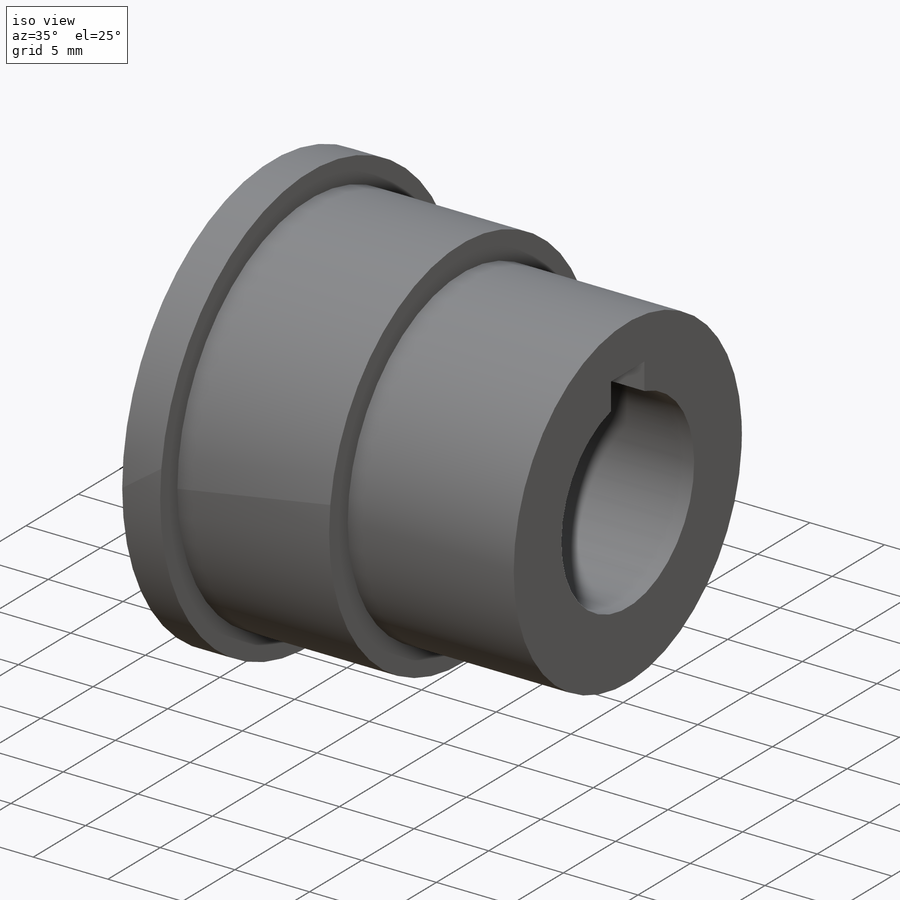
[diagram: iso view]
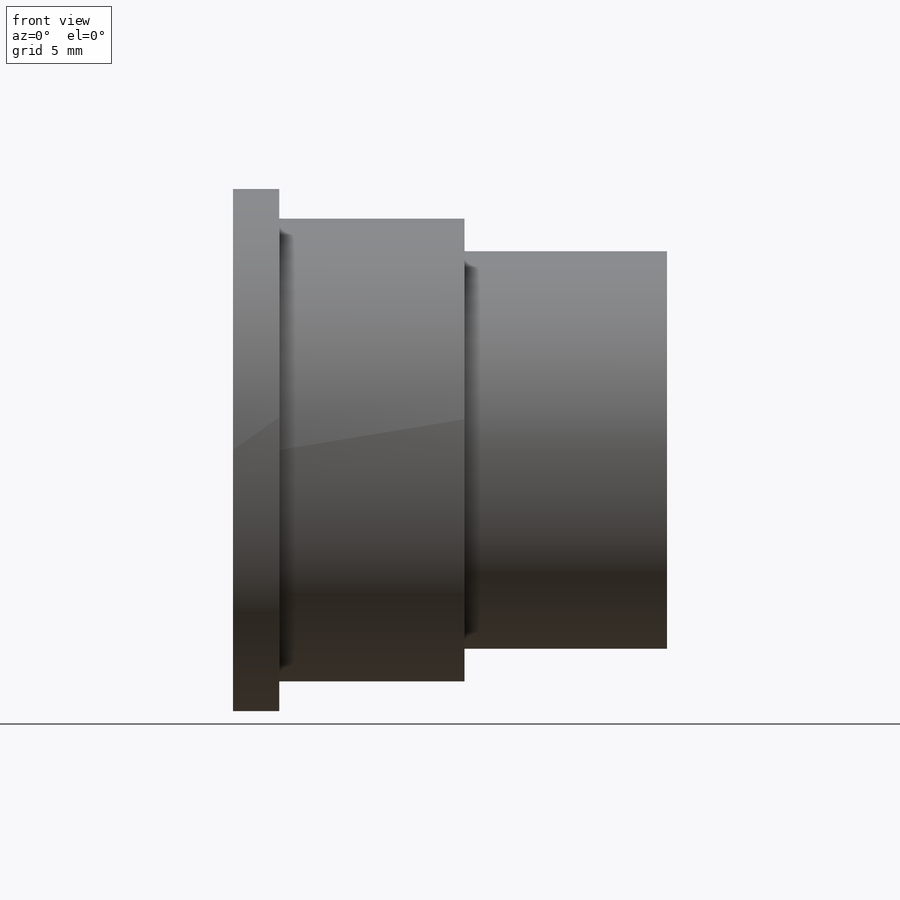
[diagram: front view]
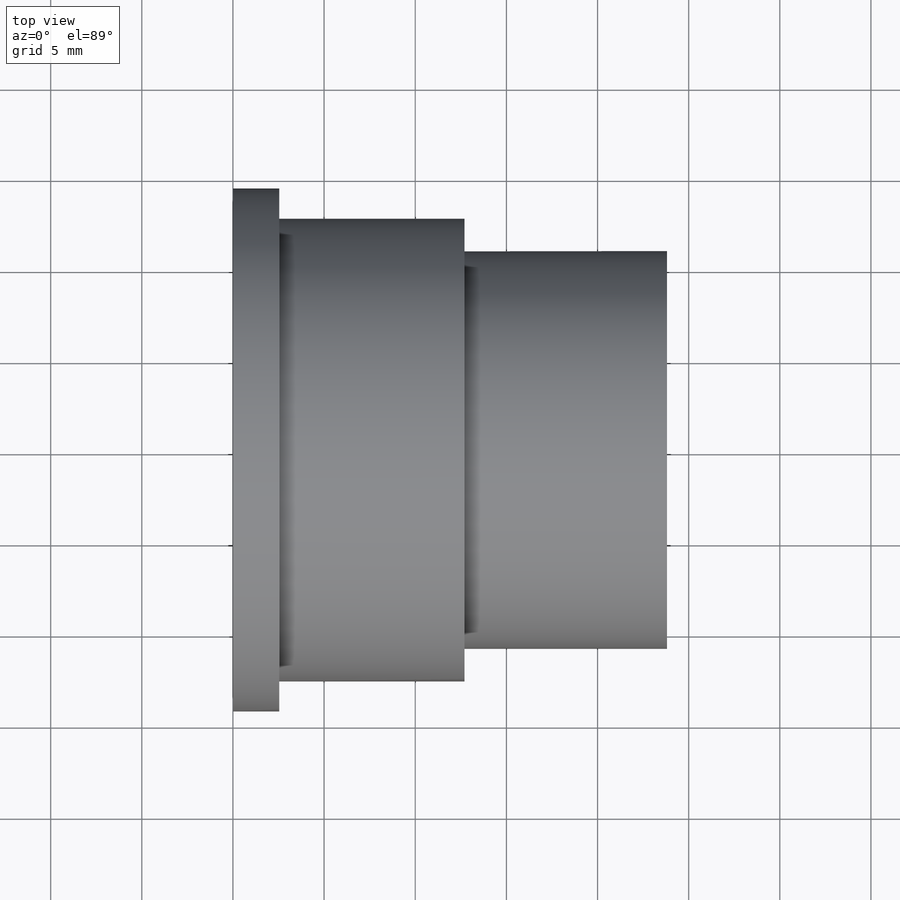
[diagram: top view]
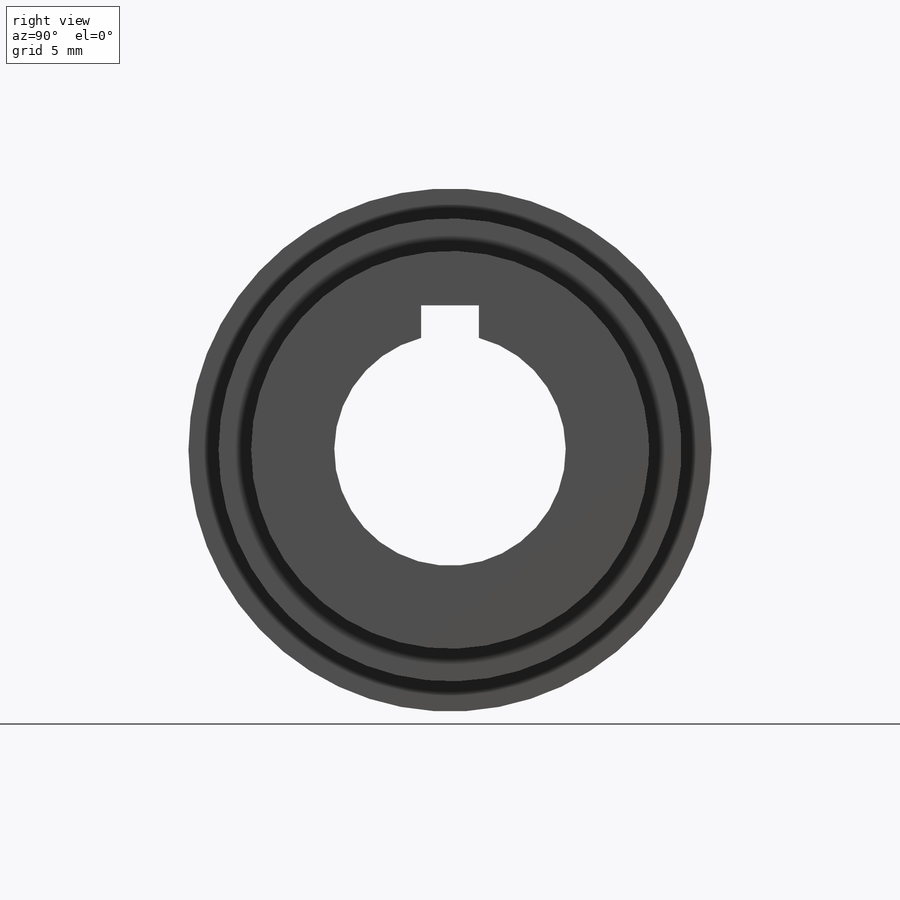
[diagram: right view]
SOLIDWORKS PART (.sldprt)
format: sldprt  version: not decoded by parser v0  size: 183,808 bytes
history: native  units: mm
features: sketch x3, extrude x3, material x1 (+13 scaffold rows collapsed)
feature tree (20):
  scaffold x13  (default folders/planes/origin — collapsed)
  material  "Plain Carbon Steel"
  sketch  "Sketch1"  dims[c1.D1=~5.620761mm c1.D4=12.7mm c2.D1=6.35mm c2.D2=1.5875mm c2.D3=3.175mm]
  extrude  "Boss-Extrude1"  Depth=23.8125mm
  sketch  "Sketch2"  dims[D1=~18.033521mm]
  extrude  "Boss-Extrude2"  Depth=12.7mm
  sketch  "Sketch5"  dims[D1=~14.670859mm]
  extrude  "Boss-Extrude3"  Depth=2.54mm
decode coverage: 6 of 6 modeling features carry decoded parameters
note: ~ marks probable driven/reference dimensions
note: suppression state not decoded; provenance and decode notes live in map.json
